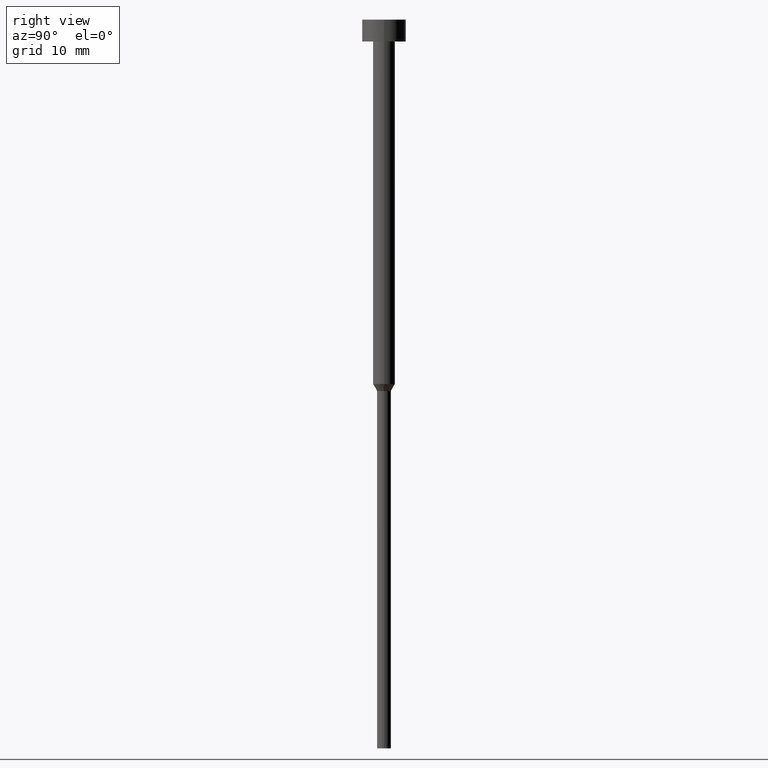
[diagram: clean part render]
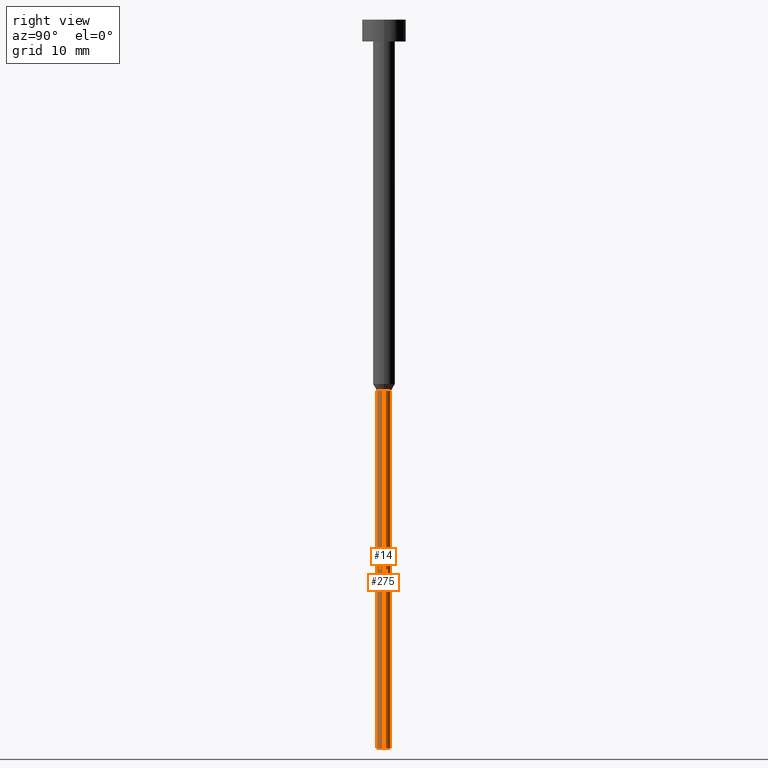
[diagram: same view with one multi-face feature highlighted, each face labeled with its STEP entity id]
A machine part, right view. The highlighted faces form ONE feature: a constant-radius fillet chain: 2 tangent blend faces with common blend radius 0.95 mm. The faces share edges in the B-rep.
Their STEP definitions:
[1] entity #14 (Cylinder):
#11 = ORIENTED_EDGE ( 'NONE', *, *, #267, .T. ) ;
#14 = ADVANCED_FACE ( 'NONE', ( #266 ), #23, .T. ) ;
#23 = CYLINDRICAL_SURFACE ( 'NONE', #192, 0.9499999999999999556 ) ;
#25 = CARTESIAN_POINT ( 'NONE',  ( -0.9500000000000001776, 1.163414459189985929E-16, -50.95262794416287733 ) ) ;
#28 = CARTESIAN_POINT ( 'NONE',  ( 0.000000000000000000, 0.000000000000000000, -100.0000000000000000 ) ) ;
#31 = AXIS2_PLACEMENT_3D ( 'NONE', #108, #248, #90 ) ;
#52 = ORIENTED_EDGE ( 'NONE', *, *, #167, .T. ) ;
#53 = DIRECTION ( 'NONE',  ( -0.000000000000000000, -0.000000000000000000, 1.000000000000000000 ) ) ;
#58 = AXIS2_PLACEMENT_3D ( 'NONE', #28, #264, #296 ) ;
#67 = ORIENTED_EDGE ( 'NONE', *, *, #104, .F. ) ;
#70 = VERTEX_POINT ( 'NONE', #352 ) ;
#75 = CARTESIAN_POINT ( 'NONE',  ( -0.9499999999999999556, 1.163414459189985682E-16, 0.000000000000000000 ) ) ;
#81 = DIRECTION ( 'NONE',  ( 1.000000000000000000, 0.000000000000000000, 0.000000000000000000 ) ) ;
#88 = CARTESIAN_POINT ( 'NONE',  ( 0.9499999999999998446, 0.000000000000000000, -100.0000000000000000 ) ) ;
#90 = DIRECTION ( 'NONE',  ( 1.000000000000000000, 0.000000000000000000, 0.000000000000000000 ) ) ;
#95 = EDGE_LOOP ( 'NONE', ( #67, #52, #11, #254 ) ) ;
#104 = EDGE_CURVE ( 'NONE', #204, #177, #347, .T. ) ;
#108 = CARTESIAN_POINT ( 'NONE',  ( 0.000000000000000000, 0.000000000000000000, -50.95262794416287733 ) ) ;
#109 = CIRCLE ( 'NONE', #31, 0.9500000000000000666 ) ;
#114 = VECTOR ( 'NONE', #317, 1000.000000000000000 ) ;
#167 = EDGE_CURVE ( 'NONE', #204, #252, #197, .T. ) ;
#177 = VERTEX_POINT ( 'NONE', #25 ) ;
#192 = AXIS2_PLACEMENT_3D ( 'NONE', #292, #53, #81 ) ;
#197 = CIRCLE ( 'NONE', #58, 0.9499999999999998446 ) ;
#204 = VERTEX_POINT ( 'NONE', #236 ) ;
#217 = DIRECTION ( 'NONE',  ( -0.000000000000000000, -0.000000000000000000, 1.000000000000000000 ) ) ;
#218 = VECTOR ( 'NONE', #217, 1000.000000000000000 ) ;
#219 = CARTESIAN_POINT ( 'NONE',  ( 0.9499999999999999556, 0.000000000000000000, 0.000000000000000000 ) ) ;
#236 = CARTESIAN_POINT ( 'NONE',  ( -0.9499999999999998446, 1.163414459189985682E-16, -100.0000000000000000 ) ) ;
#248 = DIRECTION ( 'NONE',  ( -0.000000000000000000, -0.000000000000000000, 1.000000000000000000 ) ) ;
#252 = VERTEX_POINT ( 'NONE', #88 ) ;
#254 = ORIENTED_EDGE ( 'NONE', *, *, #278, .F. ) ;
#264 = DIRECTION ( 'NONE',  ( -0.000000000000000000, -0.000000000000000000, 1.000000000000000000 ) ) ;
#266 = FACE_OUTER_BOUND ( 'NONE', #95, .T. ) ;
#267 = EDGE_CURVE ( 'NONE', #252, #70, #331, .T. ) ;
#278 = EDGE_CURVE ( 'NONE', #177, #70, #109, .T. ) ;
#292 = CARTESIAN_POINT ( 'NONE',  ( 0.000000000000000000, 0.000000000000000000, 0.000000000000000000 ) ) ;
#296 = DIRECTION ( 'NONE',  ( 1.000000000000000000, 0.000000000000000000, 0.000000000000000000 ) ) ;
#317 = DIRECTION ( 'NONE',  ( -0.000000000000000000, -0.000000000000000000, 1.000000000000000000 ) ) ;
#331 = LINE ( 'NONE', #219, #218 ) ;
#347 = LINE ( 'NONE', #75, #114 ) ;
#352 = CARTESIAN_POINT ( 'NONE',  ( 0.9500000000000000666, 0.000000000000000000, -50.95262794416287733 ) ) ;
[2] entity #275 (Cylinder):
#25 = CARTESIAN_POINT ( 'NONE',  ( -0.9500000000000001776, 1.163414459189985929E-16, -50.95262794416287733 ) ) ;
#50 = EDGE_CURVE ( 'NONE', #252, #204, #176, .T. ) ;
#70 = VERTEX_POINT ( 'NONE', #352 ) ;
#75 = CARTESIAN_POINT ( 'NONE',  ( -0.9499999999999999556, 1.163414459189985682E-16, 0.000000000000000000 ) ) ;
#88 = CARTESIAN_POINT ( 'NONE',  ( 0.9499999999999998446, 0.000000000000000000, -100.0000000000000000 ) ) ;
#104 = EDGE_CURVE ( 'NONE', #204, #177, #347, .T. ) ;
#110 = CYLINDRICAL_SURFACE ( 'NONE', #308, 0.9499999999999999556 ) ;
#114 = VECTOR ( 'NONE', #317, 1000.000000000000000 ) ;
#134 = CARTESIAN_POINT ( 'NONE',  ( 0.000000000000000000, 0.000000000000000000, 0.000000000000000000 ) ) ;
#166 = DIRECTION ( 'NONE',  ( 1.000000000000000000, 0.000000000000000000, 0.000000000000000000 ) ) ;
#172 = ORIENTED_EDGE ( 'NONE', *, *, #267, .F. ) ;
#176 = CIRCLE ( 'NONE', #338, 0.9499999999999998446 ) ;
#177 = VERTEX_POINT ( 'NONE', #25 ) ;
#204 = VERTEX_POINT ( 'NONE', #236 ) ;
#217 = DIRECTION ( 'NONE',  ( -0.000000000000000000, -0.000000000000000000, 1.000000000000000000 ) ) ;
#218 = VECTOR ( 'NONE', #217, 1000.000000000000000 ) ;
#219 = CARTESIAN_POINT ( 'NONE',  ( 0.9499999999999999556, 0.000000000000000000, 0.000000000000000000 ) ) ;
#224 = DIRECTION ( 'NONE',  ( -0.000000000000000000, -0.000000000000000000, 1.000000000000000000 ) ) ;
#225 = ORIENTED_EDGE ( 'NONE', *, *, #353, .F. ) ;
#236 = CARTESIAN_POINT ( 'NONE',  ( -0.9499999999999998446, 1.163414459189985682E-16, -100.0000000000000000 ) ) ;
#238 = DIRECTION ( 'NONE',  ( 1.000000000000000000, 0.000000000000000000, 0.000000000000000000 ) ) ;
#241 = CIRCLE ( 'NONE', #323, 0.9500000000000000666 ) ;
#242 = CARTESIAN_POINT ( 'NONE',  ( 0.000000000000000000, 0.000000000000000000, -100.0000000000000000 ) ) ;
#249 = DIRECTION ( 'NONE',  ( -0.000000000000000000, -0.000000000000000000, 1.000000000000000000 ) ) ;
#252 = VERTEX_POINT ( 'NONE', #88 ) ;
#267 = EDGE_CURVE ( 'NONE', #252, #70, #331, .T. ) ;
#270 = DIRECTION ( 'NONE',  ( -0.000000000000000000, -0.000000000000000000, 1.000000000000000000 ) ) ;
#274 = FACE_OUTER_BOUND ( 'NONE', #342, .T. ) ;
#275 = ADVANCED_FACE ( 'NONE', ( #274 ), #110, .T. ) ;
#283 = ORIENTED_EDGE ( 'NONE', *, *, #104, .T. ) ;
#297 = DIRECTION ( 'NONE',  ( 1.000000000000000000, 0.000000000000000000, 0.000000000000000000 ) ) ;
#308 = AXIS2_PLACEMENT_3D ( 'NONE', #134, #249, #297 ) ;
#309 = CARTESIAN_POINT ( 'NONE',  ( 0.000000000000000000, 0.000000000000000000, -50.95262794416287733 ) ) ;
#310 = ORIENTED_EDGE ( 'NONE', *, *, #50, .T. ) ;
#317 = DIRECTION ( 'NONE',  ( -0.000000000000000000, -0.000000000000000000, 1.000000000000000000 ) ) ;
#323 = AXIS2_PLACEMENT_3D ( 'NONE', #309, #224, #166 ) ;
#331 = LINE ( 'NONE', #219, #218 ) ;
#338 = AXIS2_PLACEMENT_3D ( 'NONE', #242, #270, #238 ) ;
#342 = EDGE_LOOP ( 'NONE', ( #310, #283, #225, #172 ) ) ;
#347 = LINE ( 'NONE', #75, #114 ) ;
#352 = CARTESIAN_POINT ( 'NONE',  ( 0.9500000000000000666, 0.000000000000000000, -50.95262794416287733 ) ) ;
#353 = EDGE_CURVE ( 'NONE', #70, #177, #241, .T. ) ;